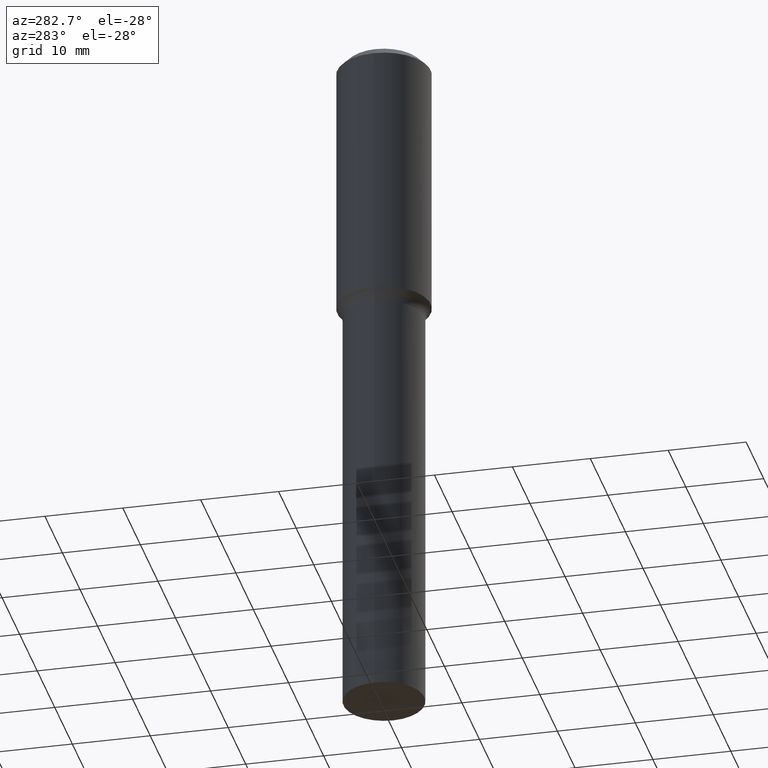
[diagram: clean part render]
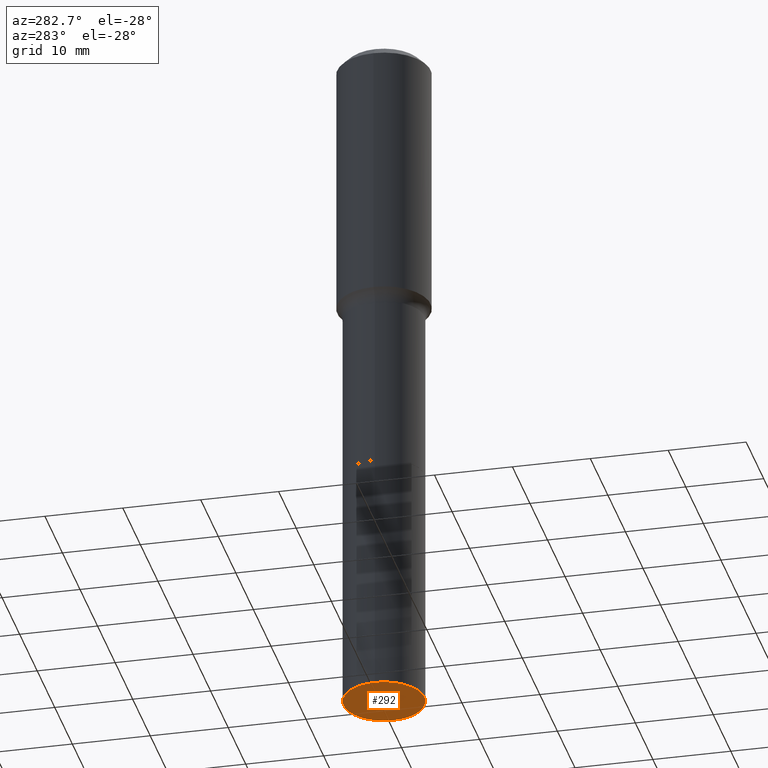
[diagram: same view with one face highlighted and labeled with its STEP entity id]
A machine part, auxiliary view. The second image highlights one B-rep face of the part: STEP entity #292.
In plain terms, the highlighted planar face has unit normal (0, -0, -1).
Its self-contained STEP definition (entity closure, byte-faithful):
#3 = EDGE_CURVE ( 'NONE', #278, #337, #229, .T. ) ;
#15 = DIRECTION ( 'NONE',  ( 1.000000000000000000, -6.982962677686263555E-15, 0.000000000000000000 ) ) ;
#50 = DIRECTION ( 'NONE',  ( -2.445468806185136597E-29, 3.491481338843145583E-15, 1.000000000000000000 ) ) ;
#56 = CARTESIAN_POINT ( 'NONE',  ( 0.2047000000000002151, -1.380077828804529626E-14, -3.543299999999999894 ) ) ;
#70 = DIRECTION ( 'NONE',  ( 1.000000000000000000, -6.982962677686263555E-15, 0.000000000000000000 ) ) ;
#90 = CARTESIAN_POINT ( 'NONE',  ( 8.665029620955794069E-29, -1.237136582792291707E-14, -3.543299999999999894 ) ) ;
#134 = DIRECTION ( 'NONE',  ( -2.445468806185136597E-29, 3.491481338843145583E-15, 1.000000000000000000 ) ) ;
#135 = AXIS2_PLACEMENT_3D ( 'NONE', #371, #50, #70 ) ;
#157 = FACE_OUTER_BOUND ( 'NONE', #263, .T. ) ;
#189 = DIRECTION ( 'NONE',  ( 2.438088387897960049E-29, -3.491481338843145188E-15, -1.000000000000000000 ) ) ;
#201 = AXIS2_PLACEMENT_3D ( 'NONE', #90, #134, #15 ) ;
#229 = CIRCLE ( 'NONE', #135, 0.2047000000000002151 ) ;
#232 = CARTESIAN_POINT ( 'NONE',  ( -0.2047000000000002151, -8.745183455061554039E-15, -3.543299999999999894 ) ) ;
#263 = EDGE_LOOP ( 'NONE', ( #338, #288 ) ) ;
#278 = VERTEX_POINT ( 'NONE', #232 ) ;
#288 = ORIENTED_EDGE ( 'NONE', *, *, #3, .F. ) ;
#292 = ADVANCED_FACE ( 'NONE', ( #157 ), #442, .T. ) ;
#337 = VERTEX_POINT ( 'NONE', #56 ) ;
#338 = ORIENTED_EDGE ( 'NONE', *, *, #358, .F. ) ;
#347 = DIRECTION ( 'NONE',  ( -1.000000000000000000, 6.982962677686265922E-15, -4.876176775795935793E-29 ) ) ;
#358 = EDGE_CURVE ( 'NONE', #337, #278, #443, .T. ) ;
#371 = CARTESIAN_POINT ( 'NONE',  ( 8.665029620955794069E-29, -1.237136582792291707E-14, -3.543299999999999894 ) ) ;
#435 = CARTESIAN_POINT ( 'NONE',  ( 8.665029620955794069E-29, -1.237136582792291707E-14, -3.543299999999999894 ) ) ;
#442 = PLANE ( 'NONE',  #449 ) ;
#443 = CIRCLE ( 'NONE', #201, 0.2047000000000002151 ) ;
#449 = AXIS2_PLACEMENT_3D ( 'NONE', #435, #189, #347 ) ;